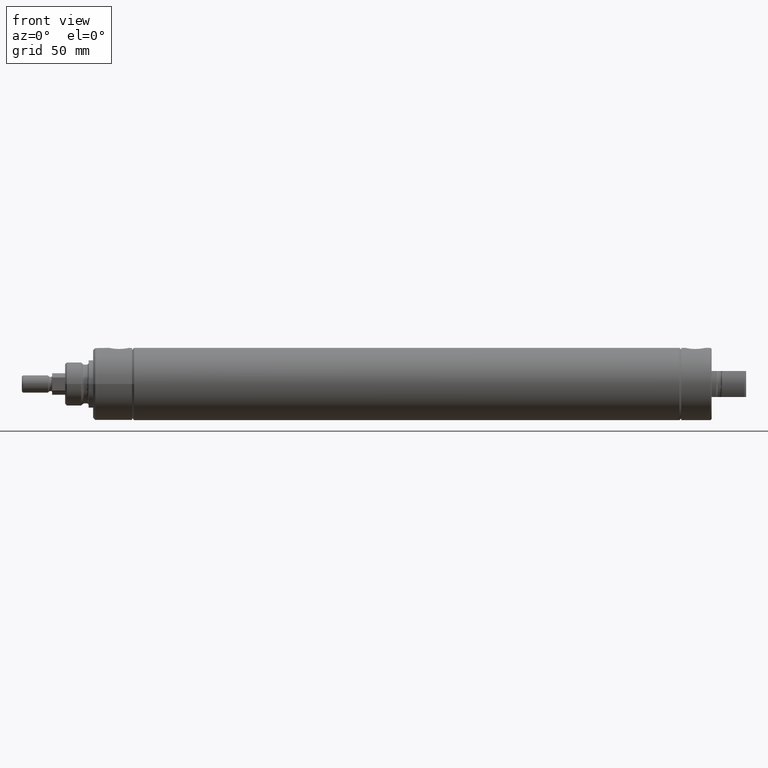
[diagram: clean part render]
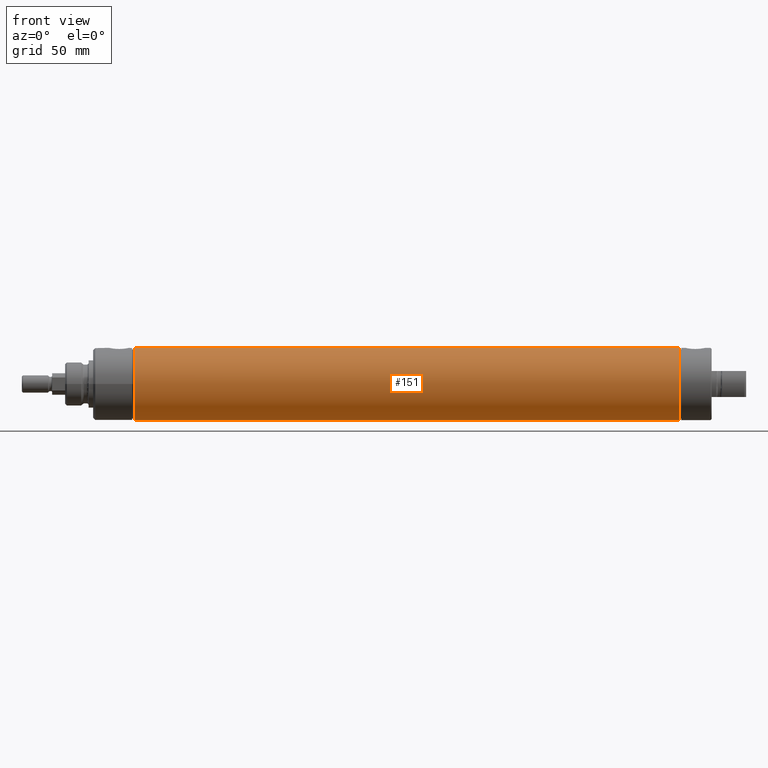
[diagram: same view with one face highlighted and labeled with its STEP entity id]
A machine part, front view. The second image highlights one B-rep face of the part: STEP entity #151.
In plain terms, the highlighted cylindrical surface (edge-blend (fillet) strip) has radius 26.543 mm, axis along (-1, 0, 0).
Its self-contained STEP definition (entity closure, byte-faithful):
#10 = DIRECTION ( 'NONE',  ( 1.000000000000000000, 0.000000000000000000, 0.000000000000000000 ) ) ;
#69 = EDGE_LOOP ( 'NONE', ( #1121, #669, #2733, #2820 ) ) ;
#123 = CIRCLE ( 'NONE', #3947, 26.54299999999999926 ) ;
#151 = ADVANCED_FACE ( 'NONE', ( #3379 ), #873, .T. ) ;
#266 = DIRECTION ( 'NONE',  ( 1.000000000000000000, 0.000000000000000000, 0.000000000000000000 ) ) ;
#430 = CARTESIAN_POINT ( 'NONE',  ( 401.6729830283399565, 0.000000000000000000, -26.54299999999999926 ) ) ;
#669 = ORIENTED_EDGE ( 'NONE', *, *, #3156, .F. ) ;
#765 = VERTEX_POINT ( 'NONE', #3035 ) ;
#844 = CARTESIAN_POINT ( 'NONE',  ( 1.577416971660475120, 3.250579998976819458E-15, 26.54299999999999926 ) ) ;
#873 = CYLINDRICAL_SURFACE ( 'NONE', #5259, 26.54299999999999926 ) ;
#994 = VERTEX_POINT ( 'NONE', #844 ) ;
#1003 = VERTEX_POINT ( 'NONE', #430 ) ;
#1121 = ORIENTED_EDGE ( 'NONE', *, *, #4053, .T. ) ;
#1165 = LINE ( 'NONE', #4569, #1281 ) ;
#1281 = VECTOR ( 'NONE', #1993, 1000.000000000000000 ) ;
#1354 = LINE ( 'NONE', #1742, #2953 ) ;
#1742 = CARTESIAN_POINT ( 'NONE',  ( 1.577416971660682066, 0.000000000000000000, -26.54299999999999926 ) ) ;
#1993 = DIRECTION ( 'NONE',  ( 1.000000000000000000, 0.000000000000000000, 0.000000000000000000 ) ) ;
#2198 = VERTEX_POINT ( 'NONE', #3048 ) ;
#2402 = CARTESIAN_POINT ( 'NONE',  ( 401.6729830283399565, 0.000000000000000000, 0.000000000000000000 ) ) ;
#2733 = ORIENTED_EDGE ( 'NONE', *, *, #3697, .F. ) ;
#2820 = ORIENTED_EDGE ( 'NONE', *, *, #3979, .T. ) ;
#2850 = CIRCLE ( 'NONE', #3825, 26.54299999999999926 ) ;
#2953 = VECTOR ( 'NONE', #10, 1000.000000000000000 ) ;
#3035 = CARTESIAN_POINT ( 'NONE',  ( 401.6729830283400133, 0.000000000000000000, 26.54300000000004545 ) ) ;
#3048 = CARTESIAN_POINT ( 'NONE',  ( 1.577416971660475120, 0.000000000000000000, -26.54299999999999926 ) ) ;
#3156 = EDGE_CURVE ( 'NONE', #1003, #765, #2850, .T. ) ;
#3379 = FACE_OUTER_BOUND ( 'NONE', #69, .T. ) ;
#3625 = DIRECTION ( 'NONE',  ( 1.000000000000000000, 0.000000000000000000, 0.000000000000000000 ) ) ;
#3697 = EDGE_CURVE ( 'NONE', #2198, #1003, #1354, .T. ) ;
#3741 = DIRECTION ( 'NONE',  ( 0.000000000000000000, 0.000000000000000000, -1.000000000000000000 ) ) ;
#3825 = AXIS2_PLACEMENT_3D ( 'NONE', #2402, #3625, #3741 ) ;
#3930 = CARTESIAN_POINT ( 'NONE',  ( 806.5008000000000266, 0.000000000000000000, 0.000000000000000000 ) ) ;
#3947 = AXIS2_PLACEMENT_3D ( 'NONE', #5479, #266, #5431 ) ;
#3979 = EDGE_CURVE ( 'NONE', #2198, #994, #123, .T. ) ;
#4053 = EDGE_CURVE ( 'NONE', #994, #765, #1165, .T. ) ;
#4569 = CARTESIAN_POINT ( 'NONE',  ( 1.577416971660454692, 3.250579998976819458E-15, 26.54299999999999926 ) ) ;
#4715 = DIRECTION ( 'NONE',  ( 0.000000000000000000, -1.000000000000000000, -7.933115629819355718E-14 ) ) ;
#5085 = DIRECTION ( 'NONE',  ( 1.000000000000000000, 0.000000000000000000, 0.000000000000000000 ) ) ;
#5259 = AXIS2_PLACEMENT_3D ( 'NONE', #3930, #5085, #4715 ) ;
#5431 = DIRECTION ( 'NONE',  ( 0.000000000000000000, 0.000000000000000000, -1.000000000000000000 ) ) ;
#5479 = CARTESIAN_POINT ( 'NONE',  ( 1.577416971660475120, 0.000000000000000000, 0.000000000000000000 ) ) ;